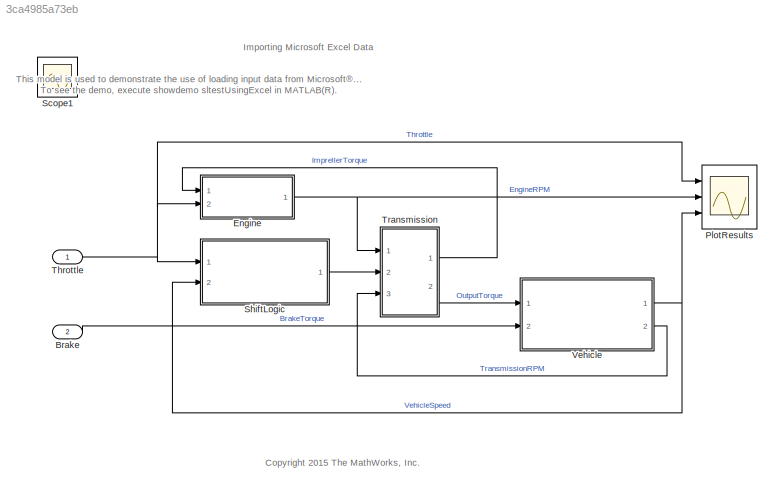
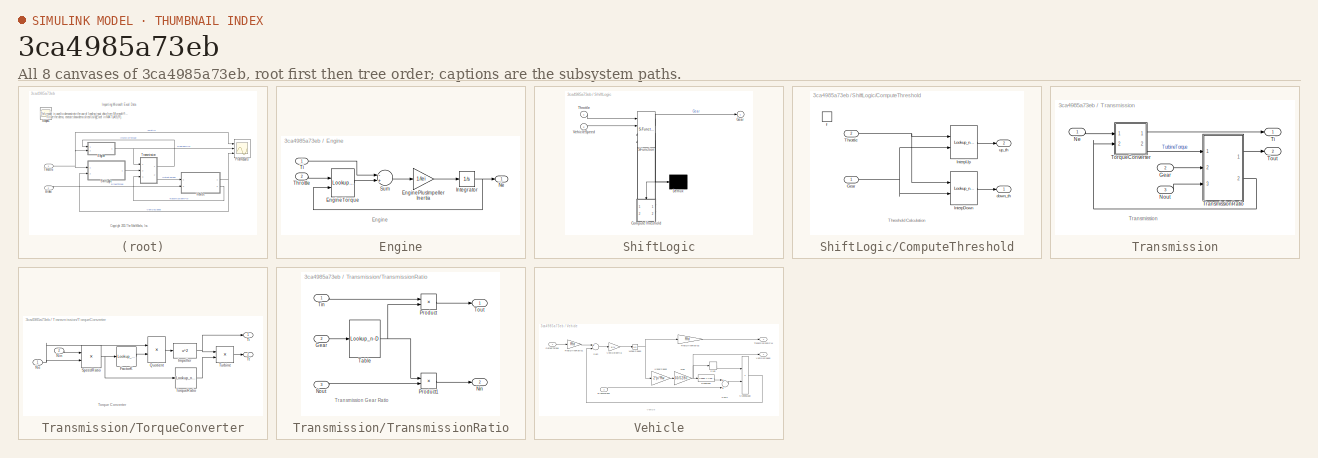
[diagram: thumbnail index - all 8 canvases of the model, root first then tree order]
MODEL slx_3ca4985a73eb
KIND model
CONFIG AbsTol = 1e-6
CONFIG FixedStep = auto
CONFIG MaxStep = auto
CONFIG MinStep = auto
CONFIG RelTol = 1e-3
CONFIG SampleTimeConstraint = Unconstrained
CONFIG Solver = ode5
CONFIG SolverMode = SingleTasking
CONFIG SolverName = ode5
CONFIG StartTime = 0.0
CONFIG StopTime = 30
WORKSPACE source: MAT-file member
WORKSPACE CONVERTER_DATA = [0 0.1 0.2 0.3 0.4 0.5 0.6 0.7 0.8 0.81 0.82 0.83 ... (63 elements, 21x3)]
BLOCK [Inport] Brake
  IconDisplay = Port number
  OutDataTypeStr = double
  Port = 2
  PortDimensions = 1
  SignalType = real
BLOCK [SubSystem] Engine
  Ports = [2, 1]
  RequestExecContextInheritance = off
  Variant = off
BLOCK [Gain] Engine/EnginePlusImpellerInertia
  Gain = 1/Iei
BLOCK [Lookup_n-D] Engine/EngineTorque
  BreakpointsForDimension1 = TH_VEC
  BreakpointsForDimension2 = NE_VEC
  Ports = [2, 1]
  Table = EMAP
BLOCK [Integrator] Engine/Integrator
  InitialCondition = 1000
  LimitOutput = on
  LowerSaturationLimit = 600
  Ports = [1, 1]
  UpperSaturationLimit = 6000
  ZeroCross = off
BLOCK [Outport] Engine/Ne
  IconDisplay = Port number
BLOCK [Sum] Engine/Sum
  Inputs = -+
  Ports = [2, 1]
BLOCK [Inport] Engine/Throttle
  IconDisplay = Port number
  Port = 2
BLOCK [Inport] Engine/Ti
  IconDisplay = Port number
BLOCK [Scope] PlotResults
  NumInputPorts = 3
  Ports = [3]
  ScopeSpecificationString = Simulink.scopes.TimeScopeBlockCfg('CurrentConfiguration', extmgr.ConfigurationSet(extmgr.Configuration('Core','General UI',true),extmgr.Configuration('Core','Source UI',true),extmgr.Configuration('Sources','WiredSimulink',true,'DataLoggingSaveFormat','StructureWithTime','DataLoggingDecimation','1'),extmgr.Configuration('Visuals','Time Domain',true,'TimeAxisLabels','All','SerializedDisplays',{struc...<+2993ch>
BLOCK [Scope] Scope1
  IOType = viewer
  Ports = []
  ScopeSpecificationString = Simulink.scopes.TimeScopeBlockCfg('CurrentConfiguration', extmgr.ConfigurationSet(extmgr.Configuration('Core','General UI',true),extmgr.Configuration('Core','Source UI',true),extmgr.Configuration('Sources','WiredSimulink',true,'DataLoggingMaxPoints','7500','DataLoggingSaveFormat','Array','DataLoggingLimitDataPoints',true,'DataLoggingDecimation','1'),extmgr.Configuration('Visuals','Time Domain',tru...<+1640ch>
BLOCK [SubSystem] ShiftLogic
  ErrorFcn = Stateflow.Translate.translate
  PermitHierarchicalResolution = ExplicitOnly
  Ports = [2, 1]
  RequestExecContextInheritance = off
  SFBlockType = Chart
  TreatAsAtomicUnit = on
  Variant = off
BLOCK [Demux] ShiftLogic/ Demux 
  Outputs = 1
  Ports = [1, 1]
BLOCK [S-Function] ShiftLogic/ SFunction 
  EnableBusSupport = off
  FunctionName = sf_sfun
  Parameters = TWAIT
  PortCounts = [4 4]
  Ports = [4, 4]
  SFunctionDeploymentMode = off
  Tag = Stateflow S-Function sltestExcelExample 1
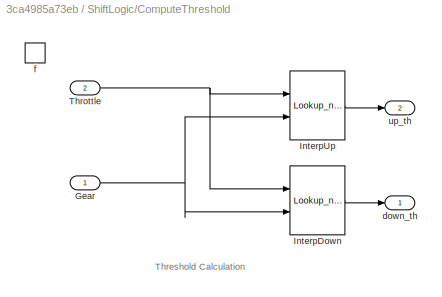
BLOCK [SubSystem] ShiftLogic/ComputeThreshold
  Ports = [2, 2, 0, 1]
  PreDeleteFcn = Stateflow.SLINSF.SimulinkMan.removePreDeleteFcn
  RequestExecContextInheritance = off
  UndoDeleteFcn = Stateflow.SLINSF.SimulinkMan.restorePreDeleteFcn
  Variant = off
BLOCK [Inport] ShiftLogic/ComputeThreshold/Gear
  IconDisplay = Port number
BLOCK [Lookup_n-D] ShiftLogic/ComputeThreshold/InterpDown
  BreakpointsForDimension1 = DOWN_TH_BP
  BreakpointsForDimension2 = [1:4]
  InputSameDT = off
  LockScale = on
  OutDataTypeStr = double
  Ports = [2, 1]
  Table = DOWN_TABLE
BLOCK [Lookup_n-D] ShiftLogic/ComputeThreshold/InterpUp
  BreakpointsForDimension1 = UP_TH_BP
  BreakpointsForDimension2 = [1:4]
  InputSameDT = off
  LockScale = on
  OutDataTypeStr = double
  Ports = [2, 1]
  Table = UP_TABLE
BLOCK [Inport] ShiftLogic/ComputeThreshold/Throttle
  IconDisplay = Port number
  Port = 2
BLOCK [Outport] ShiftLogic/ComputeThreshold/down_th
  IconDisplay = Port number
  InitialOutput = 0
BLOCK [TriggerPort] ShiftLogic/ComputeThreshold/f
  CopyFcn = Stateflow.SLINSF.SimulinkMan.removeBlockPreDeleteFcn
  Ports = []
  PreDeleteFcn = Stateflow.SLINSF.SimulinkMan.unsafePredeleteFcn
  StatesWhenEnabling = held
  TriggerType = function-call
  VariantControl = Variant
BLOCK [Outport] ShiftLogic/ComputeThreshold/up_th
  IconDisplay = Port number
  InitialOutput = 0
  Port = 2
BLOCK [Outport] ShiftLogic/Gear
  IconDisplay = Port number
BLOCK [Inport] ShiftLogic/Throttle
  IconDisplay = Port number
BLOCK [Inport] ShiftLogic/VehicleSpeed
  IconDisplay = Port number
  Port = 2
BLOCK [Inport] Throttle
  IconDisplay = Port number
  OutDataTypeStr = double
  PortDimensions = 1
  SignalType = real
BLOCK [SubSystem] Transmission
  Ports = [3, 2]
  RequestExecContextInheritance = off
  Variant = off
BLOCK [Inport] Transmission/Gear
  IconDisplay = Port number
  Port = 2
BLOCK [Inport] Transmission/Ne
  IconDisplay = Port number
BLOCK [Inport] Transmission/Nout
  IconDisplay = Port number
  Port = 3
BLOCK [Outport] Transmission/Ti
  IconDisplay = Port number
BLOCK [SubSystem] Transmission/TorqueConverter
  Ports = [2, 2]
  RequestExecContextInheritance = off
  ShowPortLabels = none
  Variant = off
BLOCK [Lookup_n-D] Transmission/TorqueConverter/FactorK
  BreakpointsForDimension1 = speedratio
  NumberOfTableDimensions = 1
  Ports = [1, 1]
  SaturateOnIntegerOverflow = on
  Table = Kfactor
BLOCK [Fcn] Transmission/TorqueConverter/Impeller
  Expr = u^2
BLOCK [Inport] Transmission/TorqueConverter/Ne
  IconDisplay = Port number
BLOCK [Inport] Transmission/TorqueConverter/Nin
  IconDisplay = Port number
  Port = 2
BLOCK [Product] Transmission/TorqueConverter/Quotient
  Inputs = */
  Ports = [2, 1]
  RndMeth = Floor
BLOCK [Product] Transmission/TorqueConverter/SpeedRatio
  Inputs = */
  Ports = [2, 1]
  RndMeth = Floor
BLOCK [Outport] Transmission/TorqueConverter/Ti
  IconDisplay = Port number
BLOCK [Lookup_n-D] Transmission/TorqueConverter/TorqueRatio
  BreakpointsForDimension1 = speedratio
  NumberOfTableDimensions = 1
  Ports = [1, 1]
  SaturateOnIntegerOverflow = on
  Table = Torkratio
BLOCK [Outport] Transmission/TorqueConverter/Tt
  IconDisplay = Port number
  Port = 2
BLOCK [Product] Transmission/TorqueConverter/Turbine
  Ports = [2, 1]
  RndMeth = Floor
BLOCK [Outport] Transmission/Tout
  IconDisplay = Port number
  Port = 2
BLOCK [SubSystem] Transmission/TransmissionRatio
  Ports = [3, 2]
  RequestExecContextInheritance = off
  Variant = off
BLOCK [Inport] Transmission/TransmissionRatio/Gear
  IconDisplay = Port number
  Port = 2
BLOCK [Outport] Transmission/TransmissionRatio/Nin
  IconDisplay = Port number
  Port = 2
BLOCK [Inport] Transmission/TransmissionRatio/Nout
  IconDisplay = Port number
  Port = 3
BLOCK [Product] Transmission/TransmissionRatio/Product
  Ports = [2, 1]
  RndMeth = Floor
BLOCK [Product] Transmission/TransmissionRatio/Product1
  Ports = [2, 1]
  RndMeth = Floor
BLOCK [Lookup_n-D] Transmission/TransmissionRatio/Table
  BreakpointsForDimension1 = [1 2 3 4]
  LockScale = on
  NumberOfTableDimensions = 1
  OutDataTypeStr = double
  Ports = [1, 1]
  SaturateOnIntegerOverflow = on
  Table = [2.393 1.450 1.000 0.677]
BLOCK [Inport] Transmission/TransmissionRatio/Tin
  IconDisplay = Port number
BLOCK [Outport] Transmission/TransmissionRatio/Tout
  IconDisplay = Port number
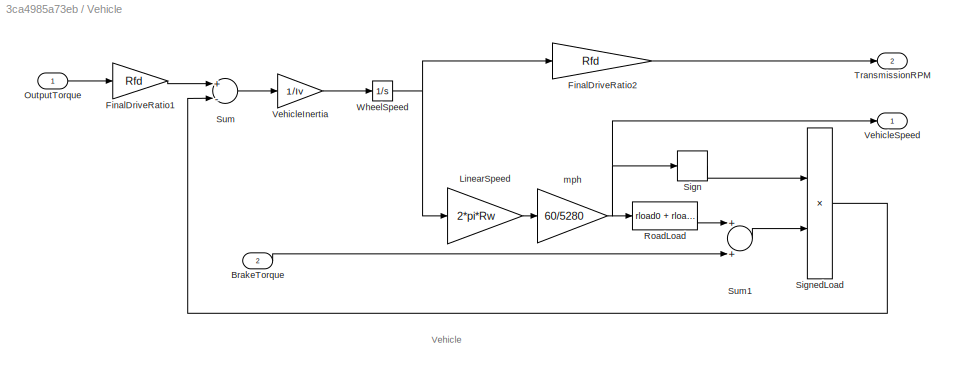
BLOCK [SubSystem] Vehicle
  Ports = [2, 2]
  RequestExecContextInheritance = off
  ShowPortLabels = none
  Variant = off
BLOCK [Inport] Vehicle/BrakeTorque
  IconDisplay = Port number
  Port = 2
BLOCK [Gain] Vehicle/FinalDriveRatio1
  Gain = Rfd
BLOCK [Gain] Vehicle/FinalDriveRatio2
  Gain = Rfd
BLOCK [Gain] Vehicle/LinearSpeed
  Gain = 2*pi*Rw
BLOCK [Inport] Vehicle/OutputTorque
  IconDisplay = Port number
BLOCK [Fcn] Vehicle/RoadLoad
  Expr = rload0 + rload2*u^2
BLOCK [Signum] Vehicle/Sign
BLOCK [Product] Vehicle/SignedLoad
  Ports = [2, 1]
  RndMeth = Floor
BLOCK [Sum] Vehicle/Sum
  Inputs = +-
  Ports = [2, 1]
BLOCK [Sum] Vehicle/Sum1
  Ports = [2, 1]
BLOCK [Outport] Vehicle/TransmissionRPM
  IconDisplay = Port number
  Port = 2
BLOCK [Gain] Vehicle/VehicleInertia
  Gain = 1/Iv
BLOCK [Outport] Vehicle/VehicleSpeed
  IconDisplay = Port number
BLOCK [Integrator] Vehicle/WheelSpeed
  InitialCondition = N20/Rfd
  Ports = [1, 1]
  ZeroCross = off
BLOCK [Gain] Vehicle/mph
  Gain = 60/5280
ANNOTATION (root): This model is used to demonstrate the use of loading input data from Microsoft ® Excel ® file in test manager. To see the demo, execute showdemo sltestUsingExcel in MATLAB(R).
ANNOTATION (root): <copyright redacted>
ANNOTATION (root): Importing Microsoft Excel Data
ANNOTATION Engine: Engine
ANNOTATION ShiftLogic/ComputeThreshold: Threshold Calculation
ANNOTATION Transmission: Transmission
ANNOTATION Transmission/TorqueConverter: Torque Converter
ANNOTATION Transmission/TransmissionRatio: Transmission Gear Ratio
ANNOTATION Vehicle: Vehicle
LINE Brake:1 -> Vehicle:2
LINE Engine/EnginePlusImpellerInertia:1 -> Engine/Integrator:1
LINE Engine/EngineTorque:1 -> Engine/Sum:2
NET Engine/Integrator:1 -> Engine/EngineTorque:2, Engine/Ne:1
LINE Engine/Sum:1 -> Engine/EnginePlusImpellerInertia:1
LINE Engine/Throttle:1 -> Engine/EngineTorque:1
LINE Engine/Ti:1 -> Engine/Sum:1
NET Engine:1 -> PlotResults:2, Transmission:1
LINE ShiftLogic:1 -> Transmission:2
NET Throttle:1 -> Engine:2, PlotResults:1, ShiftLogic:1
LINE Transmission/Gear:1 -> Transmission/TransmissionRatio:2
LINE Transmission/Ne:1 -> Transmission/TorqueConverter:1
LINE Transmission/Nout:1 -> Transmission/TransmissionRatio:3
LINE Transmission/TorqueConverter/FactorK:1 -> Transmission/TorqueConverter/Quotient:2
NET Transmission/TorqueConverter/Impeller:1 -> Transmission/TorqueConverter/Ti:1, Transmission/TorqueConverter/Turbine:1
NET Transmission/TorqueConverter/Ne:1 -> Transmission/TorqueConverter/Quotient:1, Transmission/TorqueConverter/SpeedRatio:2
LINE Transmission/TorqueConverter/Nin:1 -> Transmission/TorqueConverter/SpeedRatio:1
LINE Transmission/TorqueConverter/Quotient:1 -> Transmission/TorqueConverter/Impeller:1
NET Transmission/TorqueConverter/SpeedRatio:1 -> Transmission/TorqueConverter/FactorK:1, Transmission/TorqueConverter/TorqueRatio:1
LINE Transmission/TorqueConverter/TorqueRatio:1 -> Transmission/TorqueConverter/Turbine:2
LINE Transmission/TorqueConverter/Turbine:1 -> Transmission/TorqueConverter/Tt:1
LINE Transmission/TorqueConverter:1 -> Transmission/Ti:1
LINE Transmission/TorqueConverter:2 -> Transmission/TransmissionRatio:1
LINE Transmission/TransmissionRatio/Gear:1 -> Transmission/TransmissionRatio/Table:1
LINE Transmission/TransmissionRatio/Nout:1 -> Transmission/TransmissionRatio/Product1:2
LINE Transmission/TransmissionRatio/Product1:1 -> Transmission/TransmissionRatio/Nin:1
LINE Transmission/TransmissionRatio/Product:1 -> Transmission/TransmissionRatio/Tout:1
NET Transmission/TransmissionRatio/Table:1 -> Transmission/TransmissionRatio/Product1:1, Transmission/TransmissionRatio/Product:2
LINE Transmission/TransmissionRatio/Tin:1 -> Transmission/TransmissionRatio/Product:1
LINE Transmission/TransmissionRatio:1 -> Transmission/Tout:1
LINE Transmission/TransmissionRatio:2 -> Transmission/TorqueConverter:2
LINE Transmission:1 -> Engine:1
LINE Transmission:2 -> Vehicle:1
LINE Vehicle/BrakeTorque:1 -> Vehicle/Sum1:2
LINE Vehicle/FinalDriveRatio1:1 -> Vehicle/Sum:1
LINE Vehicle/FinalDriveRatio2:1 -> Vehicle/TransmissionRPM:1
LINE Vehicle/LinearSpeed:1 -> Vehicle/mph:1
LINE Vehicle/OutputTorque:1 -> Vehicle/FinalDriveRatio1:1
LINE Vehicle/RoadLoad:1 -> Vehicle/Sum1:1
LINE Vehicle/Sign:1 -> Vehicle/SignedLoad:1
LINE Vehicle/SignedLoad:1 -> Vehicle/Sum:2
LINE Vehicle/Sum1:1 -> Vehicle/SignedLoad:2
LINE Vehicle/Sum:1 -> Vehicle/VehicleInertia:1
LINE Vehicle/VehicleInertia:1 -> Vehicle/WheelSpeed:1
NET Vehicle/WheelSpeed:1 -> Vehicle/FinalDriveRatio2:1, Vehicle/LinearSpeed:1
NET Vehicle/mph:1 -> Vehicle/RoadLoad:1, Vehicle/Sign:1, Vehicle/VehicleSpeed:1
NET Vehicle:1 -> PlotResults:3, ShiftLogic:2
LINE Vehicle:2 -> Transmission:3
note: NET lines group one-source signal fan-out (src -> all destinations, sorted); 1:1 wires keep LINE
CHART ShiftLogic states=10 transitions=14
  STATE_LABEL 'gear_state'
  STATE_LABEL 'first\nentry:\nGear = 1;'
  STATE_LABEL 'second\nentry:\nGear = 2;'
  STATE_LABEL 'third\nentry:\nGear = 3;'
  STATE_LABEL 'fourth\nentry:\nGear = 4;'
  STATE_LABEL 'UP'
  STATE_LABEL 'UP'
  STATE_LABEL 'UP'
  STATE_LABEL 'DOWN'
  STATE_LABEL 'DOWN'
  STATE_LABEL 'DOWN'
  STATE_LABEL 'first\nentry:\nGear = 1;'
  STATE_LABEL 'second\nentry:\nGear = 2;'
  STATE_LABEL 'third\nentry:\nGear = 3;'
  STATE_LABEL 'fourth\nentry:\nGear = 4;'
  STATE_LABEL 'selection_state\nduring:\n[down_th, up_th] = ComputeThreshold(Gear,Throttle);'
  STATE_LABEL 'steady_state'
  STATE_LABEL 'upshifting'
  STATE_LABEL 'downshifting'
  STATE_LABEL '[VehicleSpeed > up_th]'
  STATE_LABEL '[VehicleSpeed < down_th]'
  STATE_LABEL '[VehicleSpeed > down_th]'
  STATE_LABEL 'after(TWAIT,tick)\n[VehicleSpeed <= down_th]\n{gear_state.DOWN}'
  STATE_LABEL 'after(TWAIT,tick)\n[VehicleSpeed >= up_th]\n{gear_state.UP}'
  STATE_LABEL '[VehicleSpeed < up_th]'
  STATE_LABEL 'steady_state'
  STATE_LABEL 'upshifting'
  STATE_LABEL 'downshifting'
  STATE_LABEL '[down_th,up_th] = ComputeThreshold(Gear,Throttle)'
